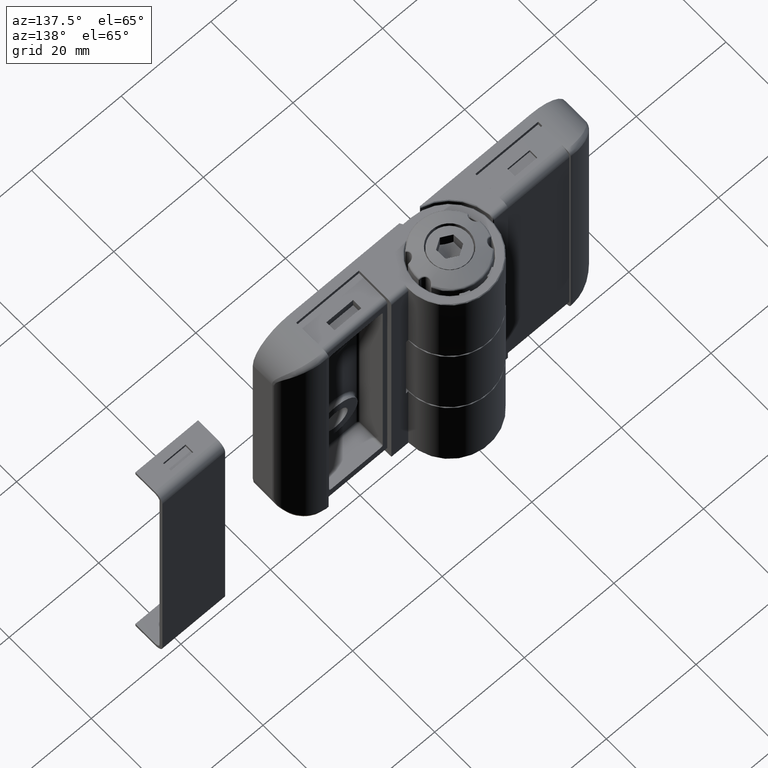
[diagram: clean part render]
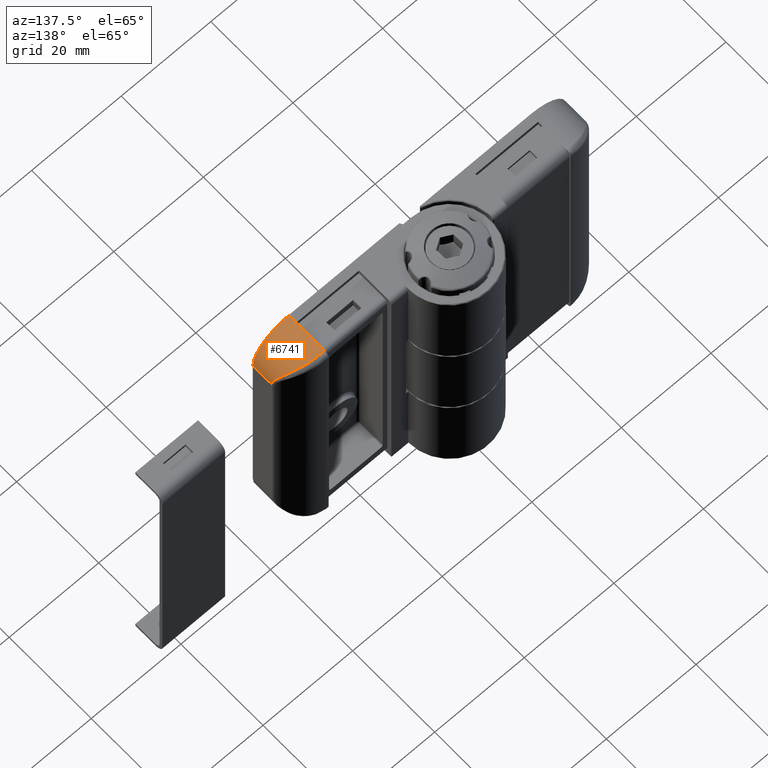
[diagram: same view with one face highlighted and labeled with its STEP entity id]
A machine part, auxiliary view. The second image highlights one B-rep face of the part: STEP entity #6741.
In plain terms, the highlighted cylindrical surface (partial cylindrical patch) has radius 8 mm, axis along (-0, 1, 0).
Its self-contained STEP definition (entity closure, byte-faithful):
#159=B_SPLINE_CURVE_WITH_KNOTS('',3,(#11228,#11229,#11230,#11231,#11232,
#11233,#11234,#11235,#11236),.UNSPECIFIED.,.F.,.F.,(4,1,1,1,1,1,4),(0.,
0.163104444580403,0.326208889160805,0.489313333741208,0.815522222902013,
0.978626667482415,1.14173111206282),.UNSPECIFIED.);
#730=LINE('',#10999,#1146);
#748=LINE('',#11367,#1164);
#750=LINE('',#11370,#1166);
#1146=VECTOR('',#8516,1.85);
#1164=VECTOR('',#8632,4.65565872763133);
#1166=VECTOR('',#8636,6.9);
#1460=CYLINDRICAL_SURFACE('',#7338,8.);
#1689=FACE_OUTER_BOUND('',#2132,.T.);
#2132=EDGE_LOOP('',(#5205,#5206,#5207,#5208,#5209,#5210));
#2581=CIRCLE('',#7324,8.);
#2591=CIRCLE('',#7339,8.);
#3030=VERTEX_POINT('',#10996);
#3031=VERTEX_POINT('',#10998);
#3057=VERTEX_POINT('',#11082);
#3058=VERTEX_POINT('',#11084);
#3060=VERTEX_POINT('',#11134);
#3069=VERTEX_POINT('',#11366);
#3813=EDGE_CURVE('',#3031,#3030,#730,.T.);
#3851=EDGE_CURVE('',#3057,#3058,#2581,.T.);
#3856=EDGE_CURVE('',#3058,#3060,#159,.T.);
#3869=EDGE_CURVE('',#3060,#3069,#748,.T.);
#3871=EDGE_CURVE('',#3057,#3031,#750,.T.);
#3872=EDGE_CURVE('',#3069,#3030,#2591,.T.);
#5205=ORIENTED_EDGE('',*,*,#3856,.F.);
#5206=ORIENTED_EDGE('',*,*,#3851,.F.);
#5207=ORIENTED_EDGE('',*,*,#3871,.T.);
#5208=ORIENTED_EDGE('',*,*,#3813,.T.);
#5209=ORIENTED_EDGE('',*,*,#3872,.F.);
#5210=ORIENTED_EDGE('',*,*,#3869,.F.);
#6741=ADVANCED_FACE('',(#1689),#1460,.T.);
#7324=AXIS2_PLACEMENT_3D('',#11085,#8600,#8601);
#7338=AXIS2_PLACEMENT_3D('',#11369,#8634,#8635);
#7339=AXIS2_PLACEMENT_3D('',#11371,#8637,#8638);
#8516=DIRECTION('',(0.,-1.,0.));
#8600=DIRECTION('center_axis',(0.,1.,0.));
#8601=DIRECTION('ref_axis',(0.0312652849262801,0.,0.999511121478135));
#8632=DIRECTION('',(0.,-1.,0.));
#8634=DIRECTION('center_axis',(0.,1.,0.));
#8635=DIRECTION('ref_axis',(-1.,0.,0.));
#8636=DIRECTION('',(0.,-1.,0.));
#8637=DIRECTION('center_axis',(0.,-1.,0.));
#8638=DIRECTION('ref_axis',(-1.,0.,0.));
#10996=CARTESIAN_POINT('',(27.,-9.75,60.));
#10998=CARTESIAN_POINT('',(27.,-7.9,60.));
#10999=CARTESIAN_POINT('',(27.,-9.75,60.));
#11082=CARTESIAN_POINT('',(27.,-1.,60.));
#11084=CARTESIAN_POINT('',(27.5714285714286,-1.,59.9795657392965));
#11085=CARTESIAN_POINT('Origin',(27.,-1.,52.));
#11134=CARTESIAN_POINT('',(35.,-5.09434127236867,52.));
#11228=CARTESIAN_POINT('Ctrl Pts',(27.5714285714286,-1.,59.9795657392965));
#11229=CARTESIAN_POINT('Ctrl Pts',(28.1911917323337,-1.,59.935183577506));
#11230=CARTESIAN_POINT('Ctrl Pts',(29.4182719943246,-1.12462162275783,59.6981711009915));
#11231=CARTESIAN_POINT('Ctrl Pts',(31.056337489052,-1.62336221833629,58.9683746272402));
#11232=CARTESIAN_POINT('Ctrl Pts',(32.8706082839859,-2.56419402972628,57.6238994317069));
#11233=CARTESIAN_POINT('Ctrl Pts',(34.1223786845898,-3.74494653414203,55.8986283578038));
#11234=CARTESIAN_POINT('Ctrl Pts',(34.8489660374137,-4.80538111883516,53.8400613468524));
#11235=CARTESIAN_POINT('Ctrl Pts',(35.,-5.09434127236867,52.6213502650682));
#11236=CARTESIAN_POINT('Ctrl Pts',(35.,-5.09434127236867,52.));
#11366=CARTESIAN_POINT('',(35.,-9.75,52.));
#11367=CARTESIAN_POINT('',(35.,-9.75,52.));
#11369=CARTESIAN_POINT('Origin',(27.,-9.75,52.));
#11370=CARTESIAN_POINT('',(27.,-9.75,60.));
#11371=CARTESIAN_POINT('Origin',(27.,-9.75,52.));